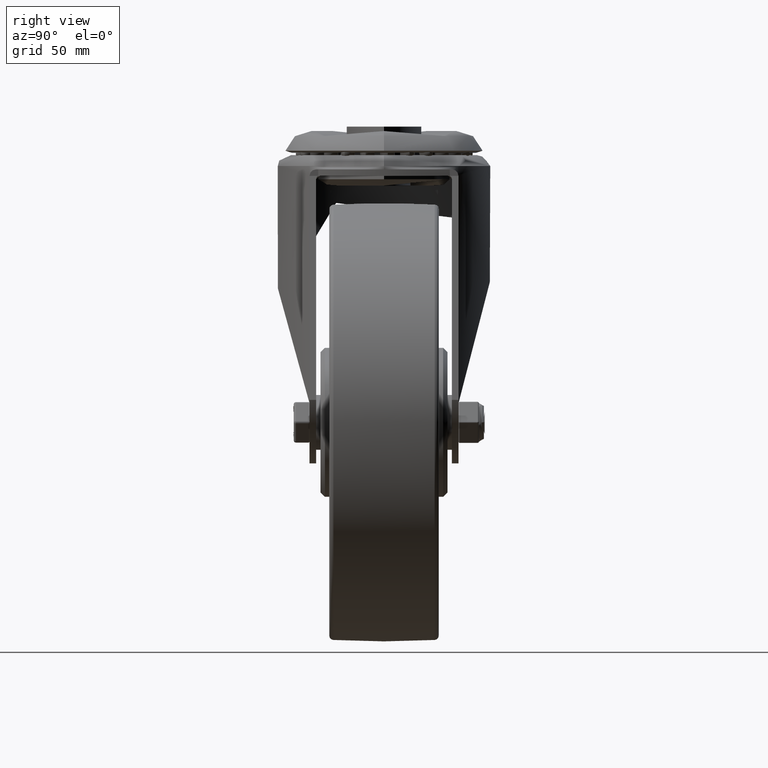
[diagram: clean part render]
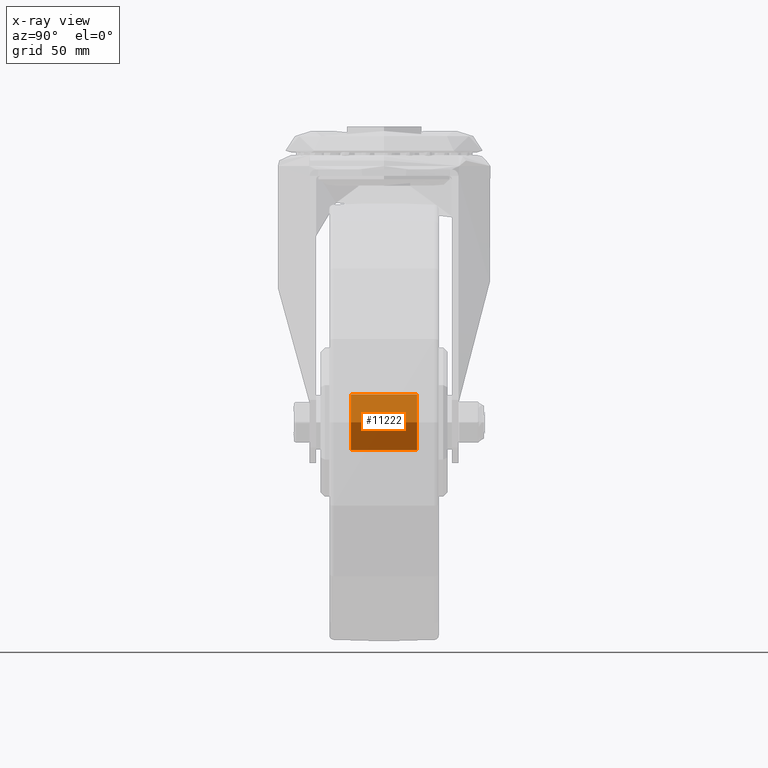
[diagram: x-ray — body ghosted, one internal face saturated and labeled with its STEP entity id]
A machine part, right view, then the same camera in x-ray: the body is ghosted and one INTERNAL B-rep face — a face not visible from any outside direction — is saturated and labeled: STEP entity #11222.
In plain terms, the highlighted cylindrical surface (bore or boss wall) has radius 12.7 mm, axis along (0, -1, -0).
Its self-contained STEP definition (entity closure, byte-faithful):
#1714=FACE_OUTER_BOUND('',#2407,.T.);
#2407=EDGE_LOOP('',(#7858,#7859,#7860,#7861));
#3199=LINE('',#16025,#3915);
#3915=VECTOR('',#13282,12.7);
#4658=CIRCLE('',#12159,12.7);
#4659=CIRCLE('',#12160,12.7);
#5053=VERTEX_POINT('',#16022);
#5054=VERTEX_POINT('',#16024);
#6163=EDGE_CURVE('',#5053,#5053,#4658,.T.);
#6164=EDGE_CURVE('',#5053,#5054,#3199,.T.);
#6165=EDGE_CURVE('',#5054,#5054,#4659,.T.);
#7858=ORIENTED_EDGE('',*,*,#6163,.T.);
#7859=ORIENTED_EDGE('',*,*,#6164,.T.);
#7860=ORIENTED_EDGE('',*,*,#6165,.T.);
#7861=ORIENTED_EDGE('',*,*,#6164,.F.);
#11046=CYLINDRICAL_SURFACE('',#12158,12.7);
#11222=ADVANCED_FACE('',(#1714),#11046,.T.);
#12158=AXIS2_PLACEMENT_3D('',#16021,#13278,#13279);
#12159=AXIS2_PLACEMENT_3D('',#16023,#13280,#13281);
#12160=AXIS2_PLACEMENT_3D('',#16026,#13283,#13284);
#13278=DIRECTION('center_axis',(0.,-1.,-3.49148336110938E-15));
#13279=DIRECTION('ref_axis',(1.,0.,0.));
#13280=DIRECTION('center_axis',(0.,1.,3.49148336110938E-15));
#13281=DIRECTION('ref_axis',(1.,0.,0.));
#13282=DIRECTION('',(0.,1.,3.49148336110938E-15));
#13283=DIRECTION('center_axis',(0.,-1.,-3.49148336110938E-15));
#13284=DIRECTION('ref_axis',(1.,0.,0.));
#16021=CARTESIAN_POINT('Origin',(0.,0.,0.));
#16022=CARTESIAN_POINT('',(-12.7,-15.125,-5.12533844018623E-14));
#16023=CARTESIAN_POINT('Origin',(0.,-15.125,-5.28086858367794E-14));
#16024=CARTESIAN_POINT('',(-12.7,15.125,5.43639872716965E-14));
#16025=CARTESIAN_POINT('',(-12.7,5.43030908152273E-30,-1.55530143491714E-15));
#16026=CARTESIAN_POINT('Origin',(0.,15.125,5.28086858367794E-14));